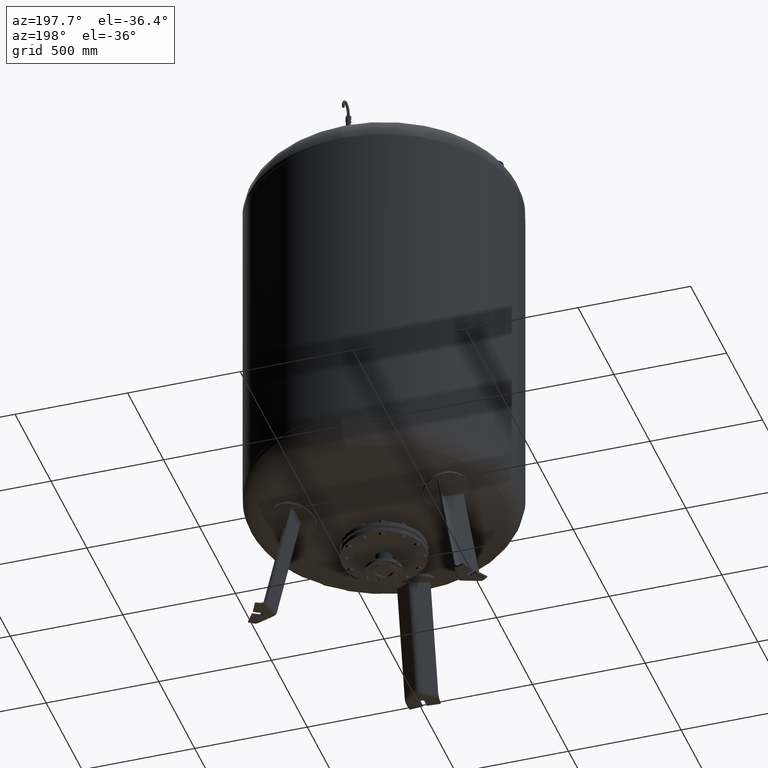
[diagram: clean part render]
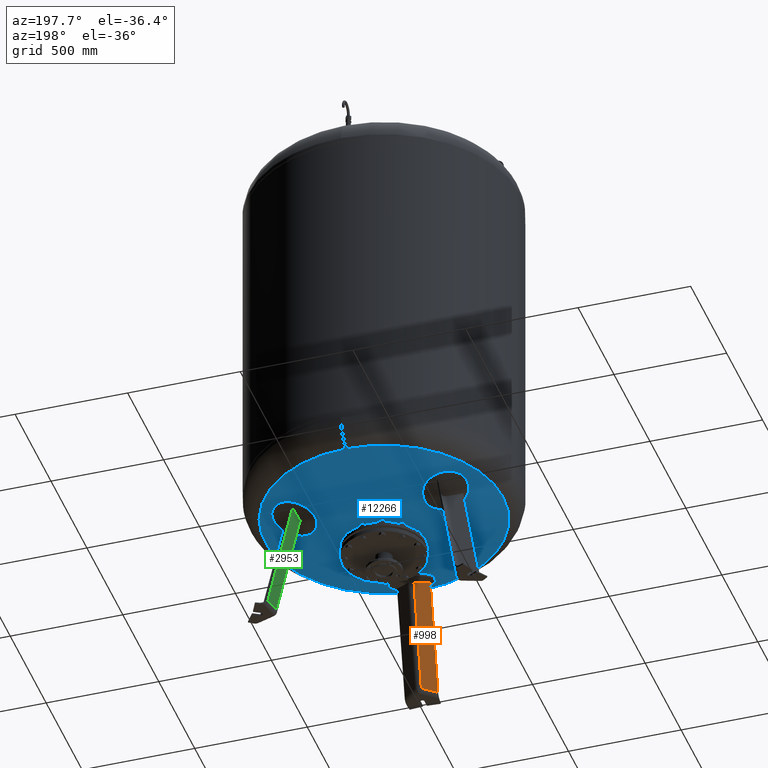
[diagram: same view with three faces highlighted in distinct colors, each labeled with its STEP entity id]
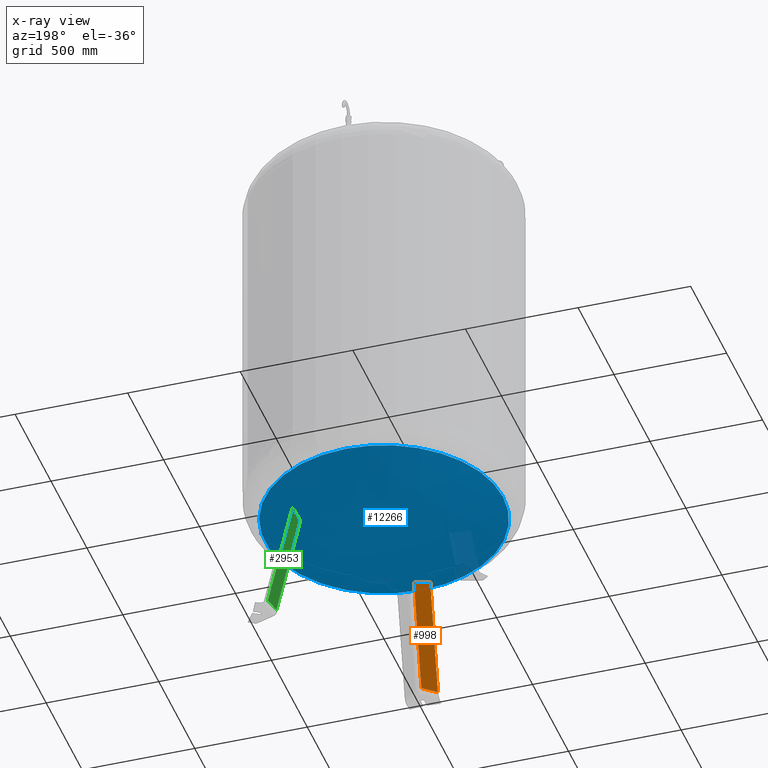
[diagram: x-ray of the same camera — body ghosted, the three highlighted faces saturated]
A machine part, auxiliary view with three faces highlighted in distinct colors.
The next image is the same camera in x-ray (body ghosted, the three faces saturated) — at least one of them is partly hidden behind the body in this view.
Their STEP definitions:

[orange] entity #998 — the highlighted planar face has unit normal (-0.6455, 0.7471, -0.1588).
#323=CARTESIAN_POINT('',(-73.500000000000000,-519.029946471096990,21.029948423057292));
#324=VERTEX_POINT('',#323);
#332=CARTESIAN_POINT('',(-16.136450826554526,-469.470961811045530,21.029948423057292));
#333=VERTEX_POINT('',#332);
#334=CARTESIAN_POINT('',(-73.500000000000000,-519.029946471096990,21.029948423057292));
#335=DIRECTION('',(0.756707249513243,0.653753882232529,0.0));
#336=VECTOR('',#335,75.806792138366546);
#337=LINE('',#334,#336);
#338=EDGE_CURVE('',#324,#333,#337,.T.);
#793=CARTESIAN_POINT('',(-16.136450826554444,-366.398456764061390,505.947959126467590));
#794=VERTEX_POINT('',#793);
#824=CARTESIAN_POINT('',(-73.499999999999886,-412.050926808483500,524.326665410275270));
#825=VERTEX_POINT('',#824);
#826=CARTESIAN_POINT('',(41.213227367519892,-110.836984172192500,1475.169845689218200));
#827=DIRECTION('',(0.645458033062181,-0.747104967402683,0.158802063077708));
#828=DIRECTION('',(-5.092368E-017,-0.207911690817760,-0.978147600733805));
#829=AXIS2_PLACEMENT_3D('',#826,#827,#828);
#830=CIRCLE('',#829,1003.987906926445600);
#831=EDGE_CURVE('',#825,#794,#830,.T.);
#969=CARTESIAN_POINT('',(-73.500000000000000,-519.029946471096990,21.029948423057292));
#970=DIRECTION('',(2.209482E-016,0.207911690817760,0.978147600733806));
#971=VECTOR('',#970,514.540665038328710);
#972=LINE('',#969,#971);
#973=EDGE_CURVE('',#324,#825,#972,.T.);
#982=CARTESIAN_POINT('',(-73.500000000000000,-528.075765201900940,-21.527282742766886));
#983=DIRECTION('',(-0.645458033062181,0.747104967402683,-0.158802063077709));
#984=DIRECTION('',(-1.834170E-016,-0.207911690817760,-0.978147600733806));
#985=AXIS2_PLACEMENT_3D('',#982,#983,#984);
#986=PLANE('',#985);
#987=ORIENTED_EDGE('',*,*,#831,.T.);
#988=CARTESIAN_POINT('',(-16.136450826554526,-469.470961811045530,21.029948423057292));
#989=DIRECTION('',(1.648254E-016,0.207911690817760,0.978147600733806));
#990=VECTOR('',#989,495.751367523291150);
#991=LINE('',#988,#990);
#992=EDGE_CURVE('',#333,#794,#991,.T.);
#993=ORIENTED_EDGE('',*,*,#992,.F.);
#994=ORIENTED_EDGE('',*,*,#338,.F.);
#995=ORIENTED_EDGE('',*,*,#973,.T.);
#996=EDGE_LOOP('',(#987,#993,#994,#995));
#997=FACE_OUTER_BOUND('',#996,.T.);
#998=ADVANCED_FACE('',(#997),#986,.T.);

[blue] entity #12266 — the highlighted spherical surface has radius 1207 mm.
#12205=CARTESIAN_POINT('',(-5.387807E-014,-528.621296296296240,581.915429516194880));
#12206=VERTEX_POINT('',#12205);
#12222=CARTESIAN_POINT('',(-1.186134E-013,528.621296296296240,581.915429516195100));
#12223=VERTEX_POINT('',#12222);
#12231=CARTESIAN_POINT('',(-528.621296296296240,-2.239550E-014,581.915429516194990));
#12232=VERTEX_POINT('',#12231);
#12233=CARTESIAN_POINT('',(-1.834112E-014,-2.239550E-014,581.915429516194990));
#12234=DIRECTION('',(0.0,0.0,1.0));
#12235=DIRECTION('',(-1.0,0.0,0.0));
#12236=AXIS2_PLACEMENT_3D('',#12233,#12234,#12235);
#12237=CIRCLE('',#12236,528.621296296296240);
#12238=EDGE_CURVE('',#12223,#12232,#12237,.T.);
#12240=CARTESIAN_POINT('',(-1.834112E-014,-2.239550E-014,581.915429516194990));
#12241=DIRECTION('',(0.0,0.0,1.0));
#12242=DIRECTION('',(-1.0,0.0,0.0));
#12243=AXIS2_PLACEMENT_3D('',#12240,#12241,#12242);
#12244=CIRCLE('',#12243,528.621296296296240);
#12245=EDGE_CURVE('',#12232,#12206,#12244,.T.);
#12250=CARTESIAN_POINT('',(-2.715353E-013,-2.217223E-013,1667.0));
#12251=DIRECTION('',(0.0,-1.0,0.0));
#12252=DIRECTION('',(1.0,0.0,0.0));
#12253=AXIS2_PLACEMENT_3D('',#12250,#12251,#12252);
#12254=SPHERICAL_SURFACE('',#12253,1207.000000000000200);
#12255=ORIENTED_EDGE('',*,*,#12245,.F.);
#12256=ORIENTED_EDGE('',*,*,#12238,.F.);
#12257=CARTESIAN_POINT('',(-1.834112E-014,-2.239550E-014,581.915429516194990));
#12258=DIRECTION('',(0.0,0.0,1.0));
#12259=DIRECTION('',(-1.0,0.0,0.0));
#12260=AXIS2_PLACEMENT_3D('',#12257,#12258,#12259);
#12261=CIRCLE('',#12260,528.621296296296240);
#12262=EDGE_CURVE('',#12206,#12223,#12261,.T.);
#12263=ORIENTED_EDGE('',*,*,#12262,.F.);
#12264=EDGE_LOOP('',(#12255,#12256,#12263));
#12265=FACE_OUTER_BOUND('',#12264,.T.);
#12266=ADVANCED_FACE('',(#12265),#12254,.T.);

[green] entity #2953 — the highlighted planar face has unit normal (-0.9697, 0.1854, -0.1588).
#2168=CARTESIAN_POINT('',(398.505553854202280,248.710057248237350,21.029948423057281));
#2169=VERTEX_POINT('',#2168);
#2210=CARTESIAN_POINT('',(412.743118968847450,323.167840413704710,21.029948423057284));
#2211=VERTEX_POINT('',#2210);
#2212=CARTESIAN_POINT('',(398.505553854202280,248.710057248237350,21.029948423057281));
#2213=DIRECTION('',(0.187813845079449,0.982204642422582,4.686537E-017));
#2214=VECTOR('',#2213,75.806792138366575);
#2215=LINE('',#2212,#2214);
#2216=EDGE_CURVE('',#2169,#2211,#2215,.T.);
#2702=CARTESIAN_POINT('',(309.243106825412270,197.174359427640810,505.942739782580020));
#2703=VERTEX_POINT('',#2702);
#2704=CARTESIAN_POINT('',(320.100983866293630,269.680878773943680,524.302688812935000));
#2705=VERTEX_POINT('',#2704);
#2706=CARTESIAN_POINT('',(116.635947881441950,19.973877625133753,1475.203780025492300));
#2707=DIRECTION('',(0.969740897595359,-0.185430570007245,0.158802063077709));
#2708=DIRECTION('',(0.180056805991956,0.103955845408880,-0.978147600733805));
#2709=AXIS2_PLACEMENT_3D('',#2706,#2707,#2708);
#2710=CIRCLE('',#2709,1003.974348556914600);
#2711=EDGE_CURVE('',#2703,#2705,#2710,.T.);
#2925=CARTESIAN_POINT('',(309.243106825412270,197.174359427640810,505.942739782580020));
#2926=DIRECTION('',(0.180056805991956,0.103955845408880,-0.978147600733806));
#2927=VECTOR('',#2926,495.746031576156330);
#2928=LINE('',#2925,#2927);
#2929=EDGE_CURVE('',#2703,#2169,#2928,.T.);
#2937=CARTESIAN_POINT('',(402.334414647440890,232.287882600950410,-21.527282742766886));
#2938=DIRECTION('',(-0.969740897595359,0.185430570007245,-0.158802063077709));
#2939=DIRECTION('',(0.180056805991956,0.103955845408880,-0.978147600733806));
#2940=AXIS2_PLACEMENT_3D('',#2937,#2938,#2939);
#2941=PLANE('',#2940);
#2942=ORIENTED_EDGE('',*,*,#2711,.T.);
#2943=CARTESIAN_POINT('',(412.743118968847450,323.167840413704710,21.029948423057284));
#2944=DIRECTION('',(-0.180056805991956,-0.103955845408880,0.978147600733806));
#2945=VECTOR('',#2944,514.516152789541020);
#2946=LINE('',#2943,#2945);
#2947=EDGE_CURVE('',#2211,#2705,#2946,.T.);
#2948=ORIENTED_EDGE('',*,*,#2947,.F.);
#2949=ORIENTED_EDGE('',*,*,#2216,.F.);
#2950=ORIENTED_EDGE('',*,*,#2929,.F.);
#2951=EDGE_LOOP('',(#2942,#2948,#2949,#2950));
#2952=FACE_OUTER_BOUND('',#2951,.T.);
#2953=ADVANCED_FACE('',(#2952),#2941,.T.);